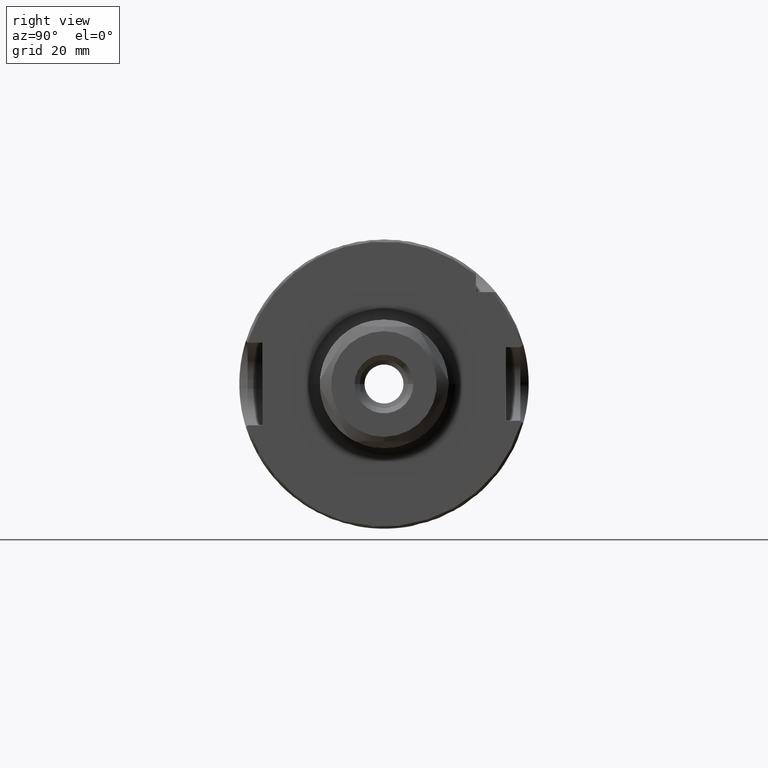
[diagram: clean part render]
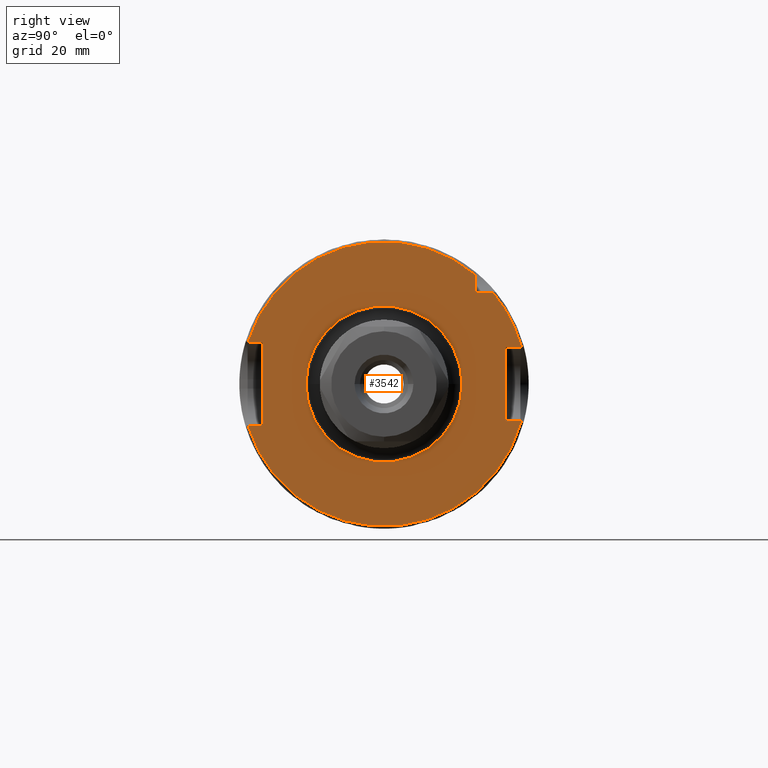
[diagram: same view with one face highlighted and labeled with its STEP entity id]
A machine part, right view. The second image highlights one B-rep face of the part: STEP entity #3542.
In plain terms, the highlighted planar face has unit normal (1, 0, 0).
Its self-contained STEP definition (entity closure, byte-faithful):
#556=DIRECTION('',(0.E0,1.E0,0.E0));
#557=VECTOR('',#556,3.164793948383E0);
#558=CARTESIAN_POINT('',(2.6E1,-2.966479394838E1,-9.E0));
#559=LINE('',#558,#557);
#560=DIRECTION('',(0.E0,0.E0,1.E0));
#561=VECTOR('',#560,1.8E1);
#562=CARTESIAN_POINT('',(2.6E1,-2.65E1,-9.E0));
#563=LINE('',#562,#561);
#564=DIRECTION('',(0.E0,1.E0,0.E0));
#565=VECTOR('',#564,3.164793948383E0);
#566=CARTESIAN_POINT('',(2.6E1,-2.966479394838E1,9.E0));
#567=LINE('',#566,#565);
#568=DIRECTION('',(0.E0,0.E0,-1.E0));
#569=VECTOR('',#568,3.685438564654E0);
#570=CARTESIAN_POINT('',(2.6E1,2.E1,2.368543856465E1));
#571=LINE('',#570,#569);
#572=DIRECTION('',(0.E0,-1.E0,0.E0));
#573=VECTOR('',#572,3.685438564654E0);
#574=CARTESIAN_POINT('',(2.6E1,2.368543856465E1,2.E1));
#575=LINE('',#574,#573);
#576=DIRECTION('',(0.E0,-7.071067811866E-1,-7.071067811865E-1));
#577=VECTOR('',#576,2.782025045904E-1);
#578=CARTESIAN_POINT('',(2.6E1,2.989671887754E1,8.196718877539E0));
#579=LINE('',#578,#577);
#580=DIRECTION('',(0.E0,-1.E0,0.E0));
#581=VECTOR('',#580,3.2E0);
#582=CARTESIAN_POINT('',(2.6E1,2.97E1,8.E0));
#583=LINE('',#582,#581);
#584=DIRECTION('',(0.E0,0.E0,1.E0));
#585=VECTOR('',#584,1.6E1);
#586=CARTESIAN_POINT('',(2.6E1,2.65E1,-8.E0));
#587=LINE('',#586,#585);
#588=DIRECTION('',(0.E0,-1.E0,0.E0));
#589=VECTOR('',#588,3.2E0);
#590=CARTESIAN_POINT('',(2.6E1,2.97E1,-8.E0));
#591=LINE('',#590,#589);
#592=DIRECTION('',(0.E0,-7.071067811866E-1,7.071067811865E-1));
#593=VECTOR('',#592,2.782025045903E-1);
#594=CARTESIAN_POINT('',(2.6E1,2.989671887754E1,-8.196718877539E0));
#595=LINE('',#594,#593);
#596=CARTESIAN_POINT('',(2.6E1,0.E0,0.E0));
#597=DIRECTION('',(1.E0,0.E0,0.E0));
#598=DIRECTION('',(0.E0,1.E0,0.E0));
#599=AXIS2_PLACEMENT_3D('',#596,#597,#598);
#601=CARTESIAN_POINT('',(2.6E1,0.E0,0.E0));
#602=DIRECTION('',(1.E0,0.E0,0.E0));
#603=DIRECTION('',(0.E0,-1.E0,0.E0));
#604=AXIS2_PLACEMENT_3D('',#601,#602,#603);
#611=CARTESIAN_POINT('',(2.6E1,0.E0,0.E0));
#612=DIRECTION('',(1.E0,0.E0,0.E0));
#613=DIRECTION('',(0.E0,-9.569288370446E-1,-2.903225806452E-1));
#614=AXIS2_PLACEMENT_3D('',#611,#612,#613);
#736=CARTESIAN_POINT('',(2.6E1,2.989671887754E1,-8.196718877539E0));
#1936=CARTESIAN_POINT('',(2.6E1,-2.966479394838E1,9.E0));
#2071=CARTESIAN_POINT('',(2.6E1,-2.966479394838E1,-9.E0));
#2264=CARTESIAN_POINT('',(2.6E1,2.989671887754E1,8.196718877539E0));
#2283=CARTESIAN_POINT('',(2.6E1,0.E0,0.E0));
#2284=DIRECTION('',(1.E0,0.E0,0.E0));
#2285=DIRECTION('',(0.E0,9.644102863722E-1,2.644102863722E-1));
#2286=AXIS2_PLACEMENT_3D('',#2283,#2284,#2285);
#2288=CARTESIAN_POINT('',(2.6E1,2.368543856465E1,2.E1));
#2313=CARTESIAN_POINT('',(2.6E1,2.E1,2.368543856465E1));
#2328=CARTESIAN_POINT('',(2.6E1,0.E0,0.E0));
#2329=DIRECTION('',(1.E0,0.E0,0.E0));
#2330=DIRECTION('',(0.E0,6.451612903226E-1,7.640464053114E-1));
#2331=AXIS2_PLACEMENT_3D('',#2328,#2329,#2330);
#2466=CARTESIAN_POINT('',(2.6E1,2.65E1,-8.E0));
#2467=CARTESIAN_POINT('',(2.6E1,2.65E1,8.E0));
#2468=VERTEX_POINT('',#2466);
#2469=VERTEX_POINT('',#2467);
#2498=CARTESIAN_POINT('',(2.6E1,-2.65E1,-9.E0));
#2499=CARTESIAN_POINT('',(2.6E1,-2.65E1,9.E0));
#2500=VERTEX_POINT('',#2498);
#2501=VERTEX_POINT('',#2499);
#2556=CARTESIAN_POINT('',(2.6E1,2.E1,2.E1));
#2557=VERTEX_POINT('',#2556);
#2749=CARTESIAN_POINT('',(2.6E1,2.97E1,-8.E0));
#2750=VERTEX_POINT('',#2749);
#2751=CARTESIAN_POINT('',(2.6E1,2.97E1,8.E0));
#2752=VERTEX_POINT('',#2751);
#2765=VERTEX_POINT('',#2071);
#2766=VERTEX_POINT('',#736);
#2769=VERTEX_POINT('',#2264);
#2770=VERTEX_POINT('',#2288);
#2773=VERTEX_POINT('',#2313);
#2774=VERTEX_POINT('',#1936);
#2793=CARTESIAN_POINT('',(2.6E1,1.7E1,0.E0));
#2794=CARTESIAN_POINT('',(2.6E1,-1.7E1,0.E0));
#2795=VERTEX_POINT('',#2793);
#2796=VERTEX_POINT('',#2794);
#3504=CARTESIAN_POINT('',(2.6E1,0.E0,0.E0));
#3505=DIRECTION('',(1.E0,0.E0,0.E0));
#3506=DIRECTION('',(0.E0,0.E0,1.E0));
#3507=AXIS2_PLACEMENT_3D('',#3504,#3505,#3506);
#3508=PLANE('',#3507);
#3510=ORIENTED_EDGE('',*,*,#3509,.F.);
#3512=ORIENTED_EDGE('',*,*,#3511,.T.);
#3514=ORIENTED_EDGE('',*,*,#3513,.T.);
#3516=ORIENTED_EDGE('',*,*,#3515,.F.);
#3518=ORIENTED_EDGE('',*,*,#3517,.F.);
#3520=ORIENTED_EDGE('',*,*,#3519,.T.);
#3522=ORIENTED_EDGE('',*,*,#3521,.F.);
#3524=ORIENTED_EDGE('',*,*,#3523,.F.);
#3526=ORIENTED_EDGE('',*,*,#3525,.T.);
#3528=ORIENTED_EDGE('',*,*,#3527,.T.);
#3530=ORIENTED_EDGE('',*,*,#3529,.F.);
#3532=ORIENTED_EDGE('',*,*,#3531,.F.);
#3534=ORIENTED_EDGE('',*,*,#3533,.F.);
#3535=EDGE_LOOP('',(#3510,#3512,#3514,#3516,#3518,#3520,#3522,#3524,#3526,#3528,
#3530,#3532,#3534));
#3536=FACE_OUTER_BOUND('',#3535,.F.);
#3538=ORIENTED_EDGE('',*,*,#3537,.T.);
#3539=ORIENTED_EDGE('',*,*,#3494,.T.);
#3540=EDGE_LOOP('',(#3538,#3539));
#3541=FACE_BOUND('',#3540,.F.);
#3542=ADVANCED_FACE('',(#3536,#3541),#3508,.T.);
#600=CIRCLE('',#599,1.7E1);
#605=CIRCLE('',#604,1.7E1);
#615=CIRCLE('',#614,3.1E1);
#2287=CIRCLE('',#2286,3.1E1);
#2332=CIRCLE('',#2331,3.1E1);
#3494=EDGE_CURVE('',#2796,#2795,#605,.T.);
#3509=EDGE_CURVE('',#2765,#2766,#615,.T.);
#3511=EDGE_CURVE('',#2765,#2500,#559,.T.);
#3513=EDGE_CURVE('',#2500,#2501,#563,.T.);
#3515=EDGE_CURVE('',#2774,#2501,#567,.T.);
#3517=EDGE_CURVE('',#2773,#2774,#2332,.T.);
#3519=EDGE_CURVE('',#2773,#2557,#571,.T.);
#3521=EDGE_CURVE('',#2770,#2557,#575,.T.);
#3523=EDGE_CURVE('',#2769,#2770,#2287,.T.);
#3525=EDGE_CURVE('',#2769,#2752,#579,.T.);
#3527=EDGE_CURVE('',#2752,#2469,#583,.T.);
#3529=EDGE_CURVE('',#2468,#2469,#587,.T.);
#3531=EDGE_CURVE('',#2750,#2468,#591,.T.);
#3533=EDGE_CURVE('',#2766,#2750,#595,.T.);
#3537=EDGE_CURVE('',#2795,#2796,#600,.T.);